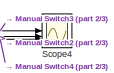
[diagram: root canvas - part 1/3, top center region]
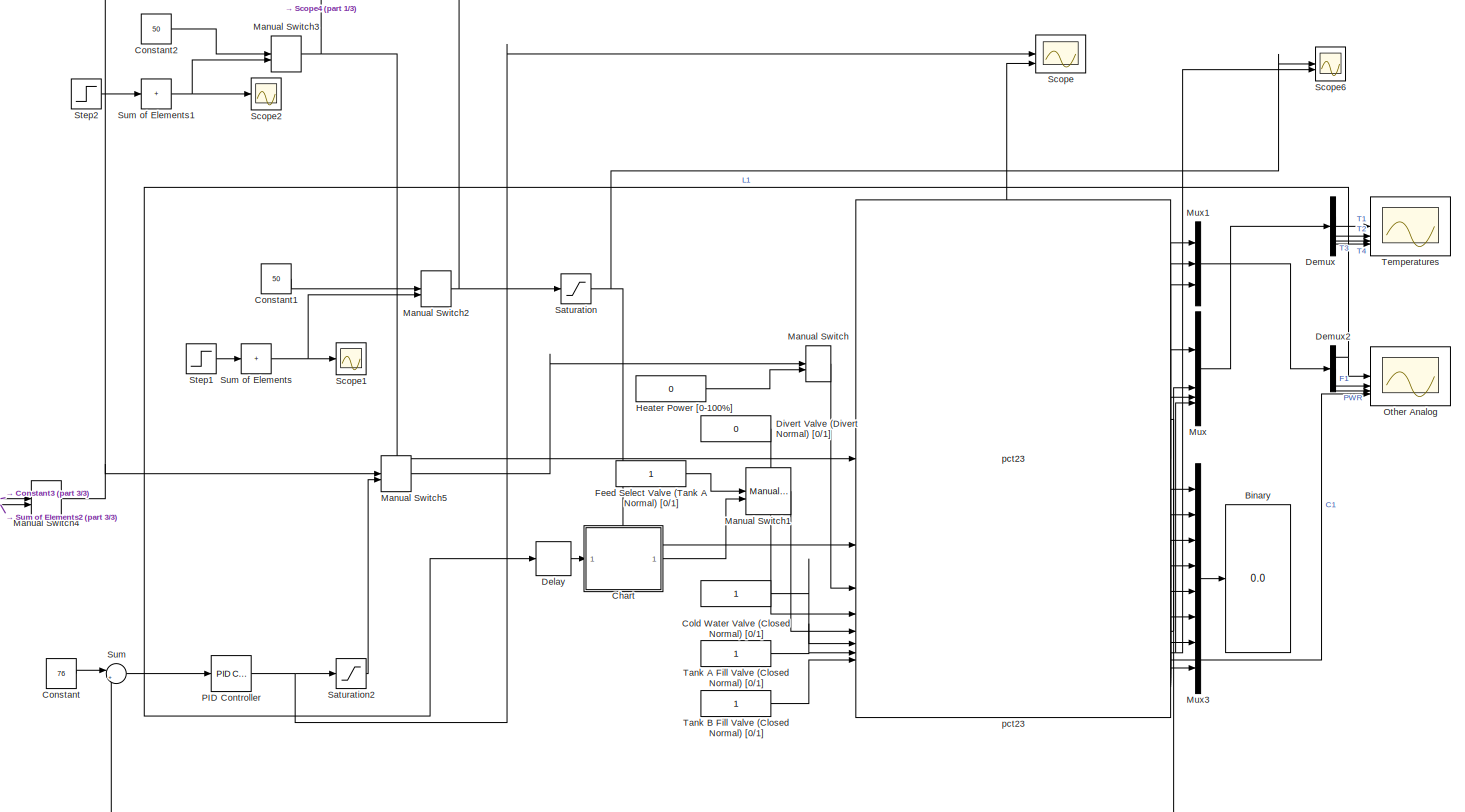
[diagram: root canvas - part 2/3, full width, middle band]
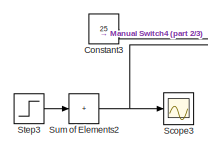
[diagram: root canvas - part 3/3, middle left region]
MODEL slx_63c04c664d79
KIND model
CONFIG AbsTol = auto
CONFIG EnableMultiTasking = off
CONFIG FixedStep = 1
CONFIG MaxStep = auto
CONFIG MinStep = auto
CONFIG RelTol = 1e-3
CONFIG SampleTimeConstraint = Unconstrained
CONFIG SolverName = FixedStepDiscrete
CONFIG StartTime = 0.0
CONFIG StopTime = 3500
BLOCK [Display] Binary
  Decimation = 1
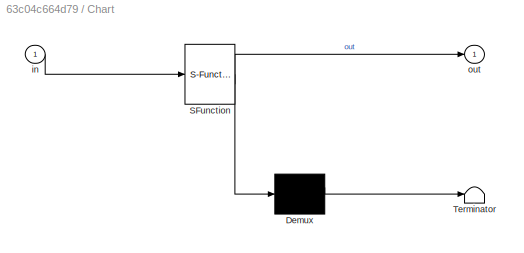
BLOCK [SubSystem] Chart
  ErrorFcn = Stateflow.Translate.translate
  PermitHierarchicalResolution = ExplicitOnly
  SFBlockType = Chart
  TreatAsAtomicUnit = on
BLOCK [Demux] Chart/ Demux 
  Outputs = 1
BLOCK [S-Function] Chart/ SFunction 
  EnableBusSupport = on
  FunctionName = sf_sfun
  PortCounts = [1 2]
  SFcnIsStateOwnerBlock = off
  SFunctionDeploymentMode = off
  Tag = Stateflow S-Function 3
BLOCK [Terminator] Chart/ Terminator 
BLOCK [Inport] Chart/in
BLOCK [Outport] Chart/out
BLOCK [Constant] Cold Water Valve (Closed Normal) [0//1]
BLOCK [Constant] Constant
  Value = 76
BLOCK [Constant] Constant1
  Value = 50
BLOCK [Constant] Constant2
  Value = 50
BLOCK [Constant] Constant3
  Value = 25
BLOCK [Delay] Delay
  InputPortMap = u0
BLOCK [Demux] Demux
BLOCK [Demux] Demux2
  Outputs = 3
BLOCK [Constant] Divert Valve (Divert Normal) [0//1]
  Value = 0
BLOCK [Constant] Feed Select Valve (Tank A Normal) [0//1]
BLOCK [Constant] Heater Power [0-100%]
  Value = 0
BLOCK [ManualSwitch] Manual Switch
BLOCK [ManualSwitch] Manual Switch1
  CurrentSetting = 0
BLOCK [ManualSwitch] Manual Switch2
  CurrentSetting = 0
BLOCK [ManualSwitch] Manual Switch3
  CurrentSetting = 0
BLOCK [ManualSwitch] Manual Switch4
  CurrentSetting = 0
BLOCK [ManualSwitch] Manual Switch5
  CurrentSetting = 0
BLOCK [Mux] Mux
  DisplayOption = bar
BLOCK [Mux] Mux1
  DisplayOption = bar
  Inputs = 3
BLOCK [Mux] Mux3
  DisplayOption = bar
  Inputs = 8
BLOCK [Scope] Other Analog
  Floating = off
  NumInputPorts = 4
  ScopeSpecificationString = Simulink.scopes.TimeScopeBlockCfg('CurrentConfiguration', extmgr.ConfigurationSet(extmgr.Configuration('Core','General UI',true),extmgr.Configuration('Core','Source UI',true),extmgr.Configuration('Sources','WiredSimulink',true),extmgr.Configuration('Visuals','Time Domain',true,'SerializedDisplays',{struct('MinYLimReal','143.02297','MaxYLimReal','196.17546','YLabelReal','','MinYLimMag','143.02297',...<+3793ch>
BLOCK [Reference] PID Controller  REF=slpidlib/PID Controller
  SourceBlock = slpidlib/PID Controller
  SourceType = PID 1dof
BLOCK [Saturate] Saturation
  LowerLimit = 0
  UpperLimit = 100
BLOCK [Saturate] Saturation2
  LowerLimit = 0
  UpperLimit = 100
BLOCK [Scope] Scope
  Floating = off
  NumInputPorts = 3
  ScopeSpecificationString = Simulink.scopes.TimeScopeBlockCfg('CurrentConfiguration', extmgr.ConfigurationSet(extmgr.Configuration('Core','General UI',true),extmgr.Configuration('Core','Source UI',true),extmgr.Configuration('Sources','WiredSimulink',true,'DataLoggingVariableName','ScopeData1'),extmgr.Configuration('Visuals','Time Domain',true,'SerializedDisplays',{struct('MinYLimReal','-12.5','MaxYLimReal','112.5','YLabelRea...<+1505ch>
BLOCK [Scope] Scope1
  Floating = off
  NumInputPorts = 1
  ScopeSpecificationString = Simulink.scopes.TimeScopeBlockCfg('CurrentConfiguration', extmgr.ConfigurationSet(extmgr.Configuration('Core','General UI',true),extmgr.Configuration('Core','Source UI',true),extmgr.Configuration('Sources','WiredSimulink',true,'DataLoggingVariableName','uout','DataLogging',true,'DataLoggingSaveFormat','Array'),extmgr.Configuration('Visuals','Time Domain',true,'SerializedDisplays',{struct('MinYLimR...<+1452ch>
BLOCK [Scope] Scope2
  Floating = off
  NumInputPorts = 1
  ScopeSpecificationString = Simulink.scopes.TimeScopeBlockCfg('CurrentConfiguration', extmgr.ConfigurationSet(extmgr.Configuration('Core','General UI',true),extmgr.Configuration('Core','Source UI',true),extmgr.Configuration('Sources','WiredSimulink',true,'DataLoggingVariableName','ScopeData1','DataLogging',true,'DataLoggingSaveFormat','Array'),extmgr.Configuration('Visuals','Time Domain',true,'SerializedDisplays',{struct('Mi...<+1458ch>
BLOCK [Scope] Scope3
  Floating = off
  NumInputPorts = 1
  ScopeSpecificationString = Simulink.scopes.TimeScopeBlockCfg('CurrentConfiguration', extmgr.ConfigurationSet(extmgr.Configuration('Core','General UI',true),extmgr.Configuration('Core','Source UI',true),extmgr.Configuration('Sources','WiredSimulink',true,'DataLoggingVariableName','ScopeData2','DataLogging',true,'DataLoggingSaveFormat','Array'),extmgr.Configuration('Visuals','Time Domain',true,'SerializedDisplays',{struct('Mi...<+1458ch>
BLOCK [Scope] Scope4
  Floating = off
  NumInputPorts = 3
  ScopeSpecificationString = Simulink.scopes.TimeScopeBlockCfg('CurrentConfiguration', extmgr.ConfigurationSet(extmgr.Configuration('Core','General UI',true),extmgr.Configuration('Core','Source UI',true),extmgr.Configuration('Sources','WiredSimulink',true,'DataLoggingVariableName','inputs','DataLogging',true),extmgr.Configuration('Visuals','Time Domain',true,'SerializedDisplays',{struct('MinYLimReal','-2.5','MaxYLimReal','122...<+1501ch>
BLOCK [Scope] Scope6
  Floating = off
  NumInputPorts = 3
  ScopeSpecificationString = Simulink.scopes.TimeScopeBlockCfg('CurrentConfiguration', extmgr.ConfigurationSet(extmgr.Configuration('Core','General UI',true,'FigureColor',[1 1 1]),extmgr.Configuration('Core','Source UI',true),extmgr.Configuration('Sources','WiredSimulink',true,'DataLoggingVariableName','ScopeData1'),extmgr.Configuration('Visuals','Time Domain',true,'SerializedDisplays',{struct('MinYLimReal','-12.5','MaxYLimRe...<+1691ch>
BLOCK [Step] Step1
  After = [100,-80,10,60,-40,20,-30,60,-80,30,20,-40,10]
  Before = [50, 0,0,0,0, 0,0,0,0, 0,0,0,0]
  SampleTime = 0
  Time = [250, 500,750,1000,1250,1500,1750,2000,2250,2500,2750,3000,3250]
BLOCK [Step] Step2
  After = [30,80,-40,-30,50,-30,-10,60,-80,50,-40,60,-40]
  Before = [50, 0,0,0,0, 0,0,0,0, 0,0,0,0]
  SampleTime = 0
  Time = [250, 500,750,1000,1250,1500,1750,2000,2250,2500,2750,3000,3250]
BLOCK [Step] Step3
  After = [25,-15,0,30,0,-15,0,-15,0,30,0,-15,0]
  Before = [25, 0,0,0,0, 0,0,0,0, 0,0,0,0]
  SampleTime = 0
  Time = [250, 500,750,1000,1250,1500,1750,2000,2250,2500,2750,3000,3250]
BLOCK [Sum] Sum
  Inputs = |+-
BLOCK [Sum] Sum of Elements
  IconShape = rectangular
  Inputs = +
BLOCK [Sum] Sum of Elements1
  IconShape = rectangular
  Inputs = +
BLOCK [Sum] Sum of Elements2
  IconShape = rectangular
  Inputs = +
BLOCK [Constant] Tank A Fill Valve (Closed Normal) [0//1]
BLOCK [Constant] Tank B Fill Valve (Closed Normal) [0//1]
BLOCK [Scope] Temperatures
  Floating = off
  NumInputPorts = 4
  ScopeSpecificationString = Simulink.scopes.TimeScopeBlockCfg('CurrentConfiguration', extmgr.ConfigurationSet(extmgr.Configuration('Core','General UI',true),extmgr.Configuration('Core','Source UI',true),extmgr.Configuration('Sources','WiredSimulink',true,'DataLoggingVariableName','Temperatures','DataLogging',true),extmgr.Configuration('Visuals','Time Domain',true,'SerializedDisplays',{struct('MinYLimReal','48.22214','MaxYLim...<+3850ch>
BLOCK [Reference] pct23  REF=pct23_lib/pct23  (lib defined in slx_2960d62a0908)
  SourceBlock = pct23_lib/pct23
  SourceType = SubSystem
LINE Chart:1 -> Manual Switch1:2
LINE Cold Water Valve (Closed Normal) [0//1]:1 -> pct23:6
LINE Constant1:1 -> Manual Switch2:1
LINE Constant2:1 -> Manual Switch3:1
LINE Constant3:1 -> Manual Switch4:1
LINE Constant:1 -> Sum:1
LINE Delay:1 -> Chart:1
NET Demux2:1 -> Delay:1, Other Analog:1
LINE Demux2:2 -> Other Analog:2
LINE Demux2:3 -> Other Analog:3
LINE Demux:1 -> Temperatures:1
LINE Demux:2 -> Temperatures:2
LINE Demux:3 -> Temperatures:3
LINE Demux:4 -> Temperatures:4
LINE Divert Valve (Divert Normal) [0//1]:1 -> pct23:4
LINE Feed Select Valve (Tank A Normal) [0//1]:1 -> Manual Switch1:1
LINE Heater Power [0-100%]:1 -> Manual Switch:2
LINE Manual Switch1:1 -> pct23:5
NET Manual Switch2:1 -> Saturation:1, Scope4:2
NET Manual Switch3:1 -> Scope4:1, pct23:1
NET Manual Switch4:1 -> Manual Switch5:1, Scope4:3
LINE Manual Switch5:1 -> Manual Switch:1
LINE Manual Switch:1 -> pct23:3
LINE Mux1:1 -> Demux2:1
LINE Mux3:1 -> Binary:1
LINE Mux:1 -> Demux:1
NET PID Controller:1 -> Saturation2:1, Scope:1
LINE Saturation2:1 -> Manual Switch5:2
NET Saturation:1 -> Scope6:1, pct23:2
LINE Step1:1 -> Sum of Elements:1
LINE Step2:1 -> Sum of Elements1:1
LINE Step3:1 -> Sum of Elements2:1
NET Sum of Elements1:1 -> Manual Switch3:2, Scope2:1
NET Sum of Elements2:1 -> Manual Switch4:2, Scope3:1
NET Sum of Elements:1 -> Manual Switch2:2, Scope1:1
LINE Sum:1 -> PID Controller:1
LINE Tank A Fill Valve (Closed Normal) [0//1]:1 -> pct23:7
LINE Tank B Fill Valve (Closed Normal) [0//1]:1 -> pct23:8
LINE pct23:1 -> Mux1:1
LINE pct23:10 -> Mux3:2
LINE pct23:11 -> Mux3:3
LINE pct23:12 -> Mux3:4
LINE pct23:13 -> Mux3:5
LINE pct23:14 -> Mux3:6
LINE pct23:15 -> Mux3:7
LINE pct23:16 -> Mux3:8
LINE pct23:2 -> Mux1:2
LINE pct23:3 -> Mux1:3
LINE pct23:4 -> Mux:1
NET pct23:5 -> Mux:2, Scope:3, Sum:2
LINE pct23:6 -> Mux:3
NET pct23:7 -> Mux:4, Scope6:2
LINE pct23:8 -> Other Analog:4
LINE pct23:9 -> Mux3:1
note: NET lines group one-source signal fan-out (src -> all destinations, sorted); 1:1 wires keep LINE
CHART Chart states=2 transitions=3
  STATE_LABEL 'Close\nout = 1;'
  STATE_LABEL 'Open\nout = 0;'
CHART  states=0 transitions=0
